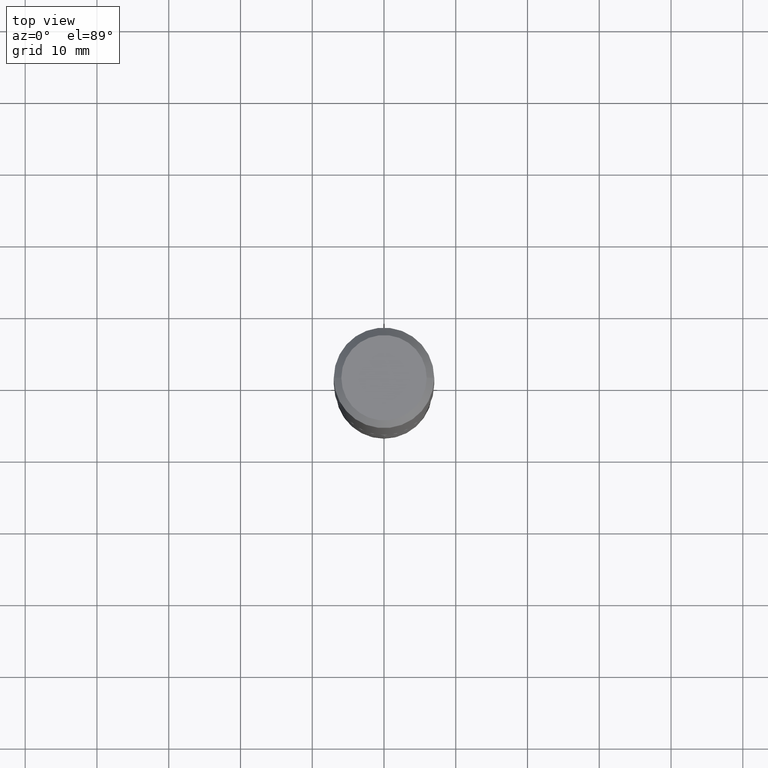
[diagram: clean part render]
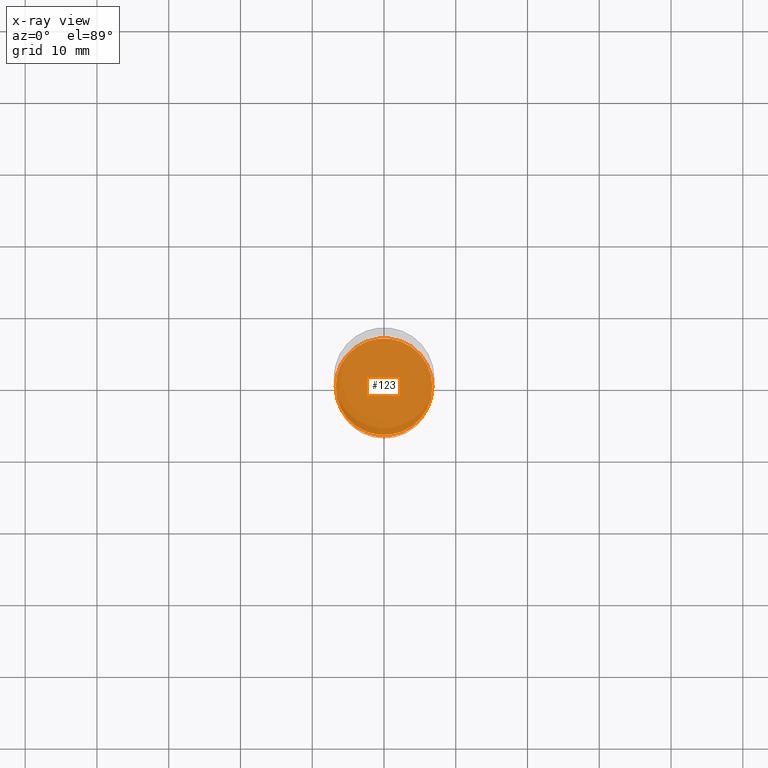
[diagram: x-ray — body ghosted, one internal face saturated and labeled with its STEP entity id]
A machine part, top view, then the same camera in x-ray: the body is ghosted and one INTERNAL B-rep face — a face not visible from any outside direction — is saturated and labeled: STEP entity #123.
In plain terms, the highlighted planar face has unit normal (-0, 0, 1).
Its self-contained STEP definition (entity closure, byte-faithful):
#7 = VERTEX_POINT ( 'NONE', #83 ) ;
#25 = PLANE ( 'NONE',  #165 ) ;
#44 = EDGE_LOOP ( 'NONE', ( #335, #438 ) ) ;
#83 = CARTESIAN_POINT ( 'NONE',  ( 0.2652499999999999858, -1.185881636738073996E-14, -2.866000000000000547 ) ) ;
#108 = EDGE_CURVE ( 'NONE', #280, #7, #432, .T. ) ;
#118 = DIRECTION ( 'NONE',  ( -2.445468806185136597E-29, 3.491481338843145583E-15, 1.000000000000000000 ) ) ;
#121 = DIRECTION ( 'NONE',  ( -2.445468806185136597E-29, 3.491481338843145583E-15, 1.000000000000000000 ) ) ;
#123 = ADVANCED_FACE ( 'NONE', ( #128 ), #25, .F. ) ;
#128 = FACE_OUTER_BOUND ( 'NONE', #44, .T. ) ;
#150 = DIRECTION ( 'NONE',  ( 1.000000000000000000, -6.982962677686265922E-15, 0.000000000000000000 ) ) ;
#159 = CARTESIAN_POINT ( 'NONE',  ( 7.008713598526602894E-29, -1.000658551712445762E-14, -2.866000000000000547 ) ) ;
#165 = AXIS2_PLACEMENT_3D ( 'NONE', #345, #241, #306 ) ;
#169 = EDGE_CURVE ( 'NONE', #7, #280, #226, .T. ) ;
#226 = CIRCLE ( 'NONE', #388, 0.2652499999999999858 ) ;
#241 = DIRECTION ( 'NONE',  ( -2.438088387897960049E-29, 3.491481338843145188E-15, 1.000000000000000000 ) ) ;
#264 = CARTESIAN_POINT ( 'NONE',  ( 7.008713598526602894E-29, -1.000658551712445762E-14, -2.866000000000000547 ) ) ;
#279 = AXIS2_PLACEMENT_3D ( 'NONE', #264, #121, #384 ) ;
#280 = VERTEX_POINT ( 'NONE', #389 ) ;
#306 = DIRECTION ( 'NONE',  ( 1.000000000000000000, -6.982962677686265922E-15, 4.876176775795935793E-29 ) ) ;
#335 = ORIENTED_EDGE ( 'NONE', *, *, #169, .F. ) ;
#345 = CARTESIAN_POINT ( 'NONE',  ( 2.886342919033864303E-29, -1.591005496092598834E-14, -2.866000000000000547 ) ) ;
#384 = DIRECTION ( 'NONE',  ( 1.000000000000000000, -6.982962677686265922E-15, 0.000000000000000000 ) ) ;
#388 = AXIS2_PLACEMENT_3D ( 'NONE', #159, #118, #150 ) ;
#389 = CARTESIAN_POINT ( 'NONE',  ( -0.2652499999999999858, -8.119221683346678410E-15, -2.866000000000000547 ) ) ;
#432 = CIRCLE ( 'NONE', #279, 0.2652499999999999858 ) ;
#438 = ORIENTED_EDGE ( 'NONE', *, *, #108, .F. ) ;